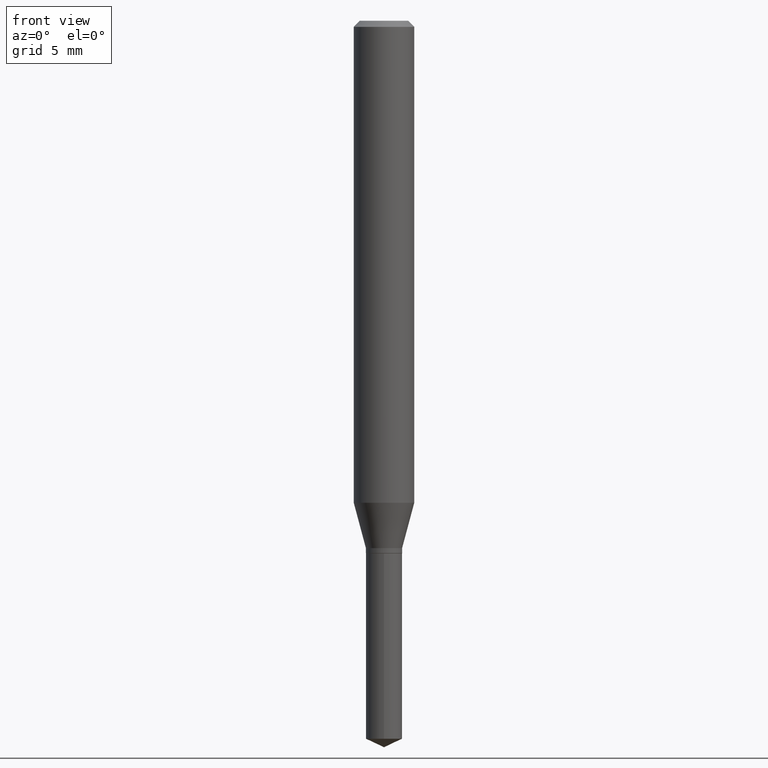
[diagram: clean part render]
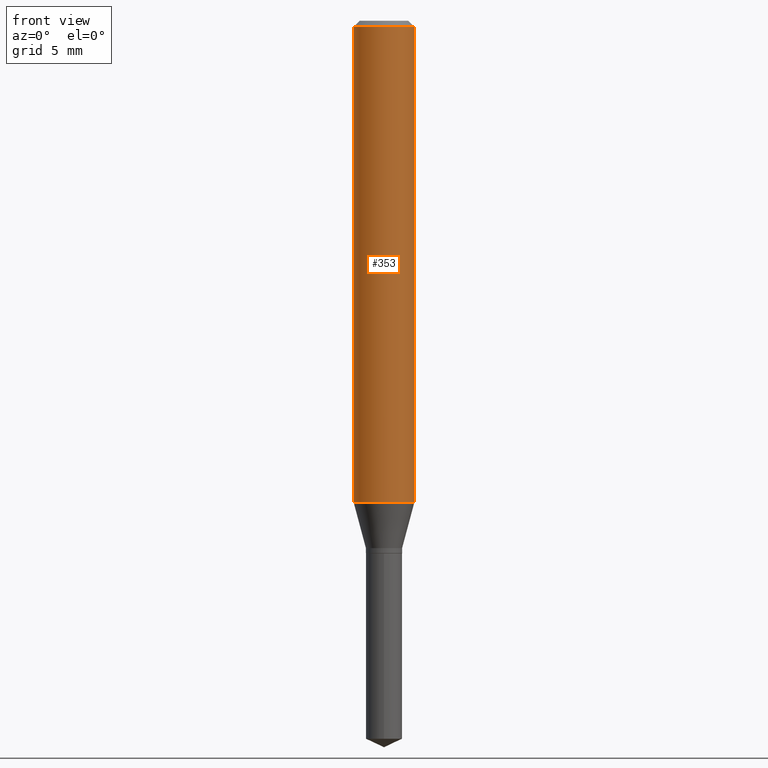
[diagram: same view with one face highlighted and labeled with its STEP entity id]
A machine part, front view. The second image highlights one B-rep face of the part: STEP entity #353.
In plain terms, the highlighted cylindrical surface (edge-blend (fillet) strip) has radius 1.5875 mm, axis along (-0, 0, 1).
Its self-contained STEP definition (entity closure, byte-faithful):
#3 = CYLINDRICAL_SURFACE ( 'NONE', #61, 0.06250000000000005551 ) ;
#11 = CARTESIAN_POINT ( 'NONE',  ( 0.06250000000000005551, -4.364351673553921131E-16, 3.047610484872463023E-30 ) ) ;
#44 = CARTESIAN_POINT ( 'NONE',  ( -0.06250000000000005551, 4.440892098500630106E-16, -3.074334431409318916E-30 ) ) ;
#45 = LINE ( 'NONE', #11, #400 ) ;
#60 = VERTEX_POINT ( 'NONE', #120 ) ;
#61 = AXIS2_PLACEMENT_3D ( 'NONE', #429, #393, #464 ) ;
#82 = VERTEX_POINT ( 'NONE', #396 ) ;
#90 = CARTESIAN_POINT ( 'NONE',  ( -0.06250000000000000000, -1.314963648218386938E-15, -0.01250000000000008223 ) ) ;
#106 = ORIENTED_EDGE ( 'NONE', *, *, #461, .T. ) ;
#120 = CARTESIAN_POINT ( 'NONE',  ( 0.06250000000000012490, -3.910897366756753978E-15, -0.9951255247300211382 ) ) ;
#137 = VECTOR ( 'NONE', #187, 39.37007874015748143 ) ;
#146 = EDGE_CURVE ( 'NONE', #82, #60, #321, .T. ) ;
#148 = LINE ( 'NONE', #44, #137 ) ;
#154 = CARTESIAN_POINT ( 'NONE',  ( 0.06250000000000000000, -4.800786840909312308E-16, -0.01250000000000008223 ) ) ;
#176 = CARTESIAN_POINT ( 'NONE',  ( 3.056836007731440977E-31, -4.364351673553961068E-17, -0.01250000000000008223 ) ) ;
#187 = DIRECTION ( 'NONE',  ( -2.445468806185136877E-29, 3.491481338843145188E-15, 1.000000000000000000 ) ) ;
#214 = EDGE_CURVE ( 'NONE', #404, #333, #330, .T. ) ;
#218 = DIRECTION ( 'NONE',  ( -2.445468806185136597E-29, 3.491481338843145583E-15, 1.000000000000000000 ) ) ;
#221 = EDGE_LOOP ( 'NONE', ( #422, #364, #106, #385 ) ) ;
#253 = DIRECTION ( 'NONE',  ( -2.445468806185136597E-29, 3.491481338843145583E-15, 1.000000000000000000 ) ) ;
#254 = AXIS2_PLACEMENT_3D ( 'NONE', #176, #253, #408 ) ;
#265 = EDGE_CURVE ( 'NONE', #82, #404, #148, .T. ) ;
#321 = CIRCLE ( 'NONE', #451, 0.06250000000000012490 ) ;
#330 = CIRCLE ( 'NONE', #254, 0.06250000000000000000 ) ;
#333 = VERTEX_POINT ( 'NONE', #154 ) ;
#346 = DIRECTION ( 'NONE',  ( -2.445468806185136877E-29, 3.491481338843145188E-15, 1.000000000000000000 ) ) ;
#353 = ADVANCED_FACE ( 'NONE', ( #386 ), #3, .T. ) ;
#364 = ORIENTED_EDGE ( 'NONE', *, *, #146, .T. ) ;
#376 = DIRECTION ( 'NONE',  ( 1.000000000000000000, -6.982962677686264344E-15, 0.000000000000000000 ) ) ;
#385 = ORIENTED_EDGE ( 'NONE', *, *, #214, .F. ) ;
#386 = FACE_OUTER_BOUND ( 'NONE', #221, .T. ) ;
#393 = DIRECTION ( 'NONE',  ( -2.445468806185136597E-29, 3.491481338843145583E-15, 1.000000000000000000 ) ) ;
#396 = CARTESIAN_POINT ( 'NONE',  ( -0.06250000000000012490, -3.030372989551298509E-15, -0.9951255247300211382 ) ) ;
#400 = VECTOR ( 'NONE', #346, 39.37007874015748143 ) ;
#404 = VERTEX_POINT ( 'NONE', #90 ) ;
#408 = DIRECTION ( 'NONE',  ( 1.000000000000000000, -6.982962677686266711E-15, 0.000000000000000000 ) ) ;
#422 = ORIENTED_EDGE ( 'NONE', *, *, #265, .F. ) ;
#429 = CARTESIAN_POINT ( 'NONE',  ( 0.000000000000000000, 0.000000000000000000, 0.000000000000000000 ) ) ;
#451 = AXIS2_PLACEMENT_3D ( 'NONE', #486, #218, #376 ) ;
#461 = EDGE_CURVE ( 'NONE', #60, #333, #45, .T. ) ;
#464 = DIRECTION ( 'NONE',  ( 1.000000000000000000, -6.982962677686267499E-15, 4.876176775795936353E-29 ) ) ;
#486 = CARTESIAN_POINT ( 'NONE',  ( 2.433548428965882427E-29, -3.474462199401361914E-15, -0.9951255247300211382 ) ) ;